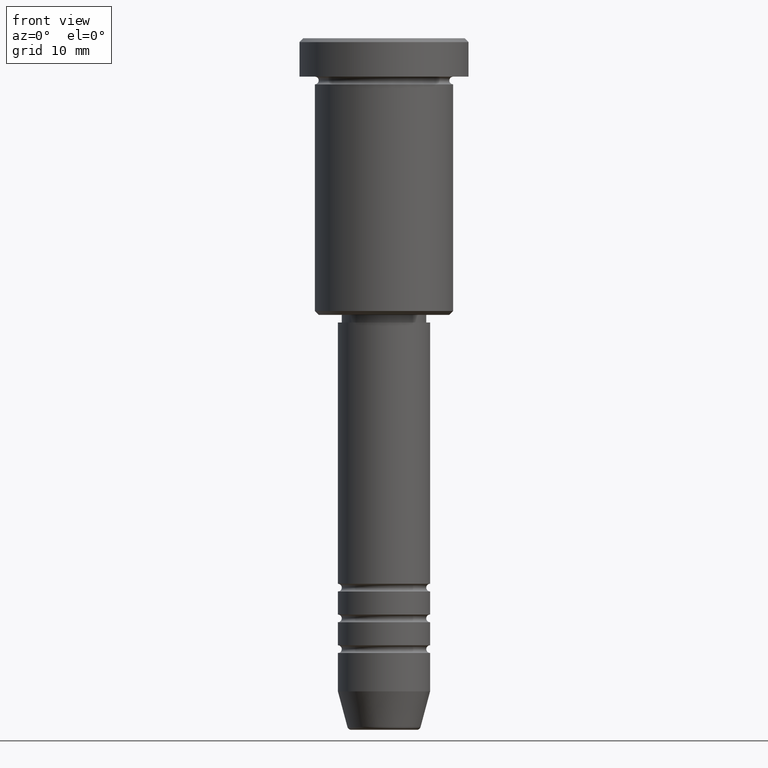
[diagram: clean part render]
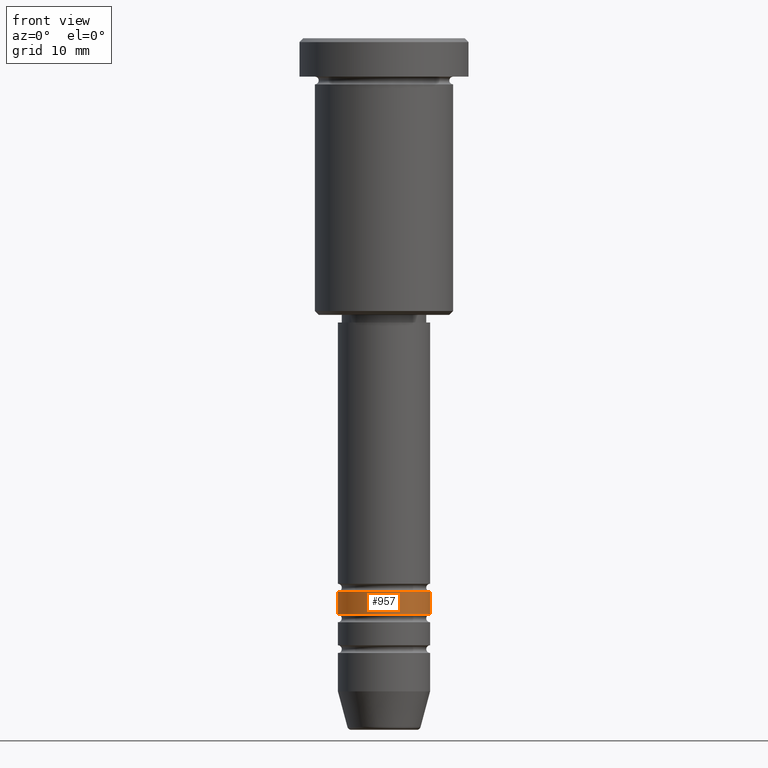
[diagram: same view with one face highlighted and labeled with its STEP entity id]
A machine part, front view. The second image highlights one B-rep face of the part: STEP entity #957.
In plain terms, the highlighted cylindrical surface (partial cylindrical patch) has radius 6 mm, axis along (-0, -0, 1).
Its self-contained STEP definition (entity closure, byte-faithful):
#29 = ORIENTED_EDGE ( 'NONE', *, *, #61, .T. ) ;
#43 = CARTESIAN_POINT ( 'NONE',  ( 6.000000000000000000, 0.000000000000000000, 0.000000000000000000 ) ) ;
#61 = EDGE_CURVE ( 'NONE', #406, #163, #1123, .T. ) ;
#81 = DIRECTION ( 'NONE',  ( -0.000000000000000000, -0.000000000000000000, 1.000000000000000000 ) ) ;
#100 = AXIS2_PLACEMENT_3D ( 'NONE', #885, #81, #634 ) ;
#115 = EDGE_LOOP ( 'NONE', ( #1179, #29, #606, #565 ) ) ;
#163 = VERTEX_POINT ( 'NONE', #828 ) ;
#169 = DIRECTION ( 'NONE',  ( -0.000000000000000000, -0.000000000000000000, 1.000000000000000000 ) ) ;
#211 = VERTEX_POINT ( 'NONE', #938 ) ;
#406 = VERTEX_POINT ( 'NONE', #683 ) ;
#457 = EDGE_CURVE ( 'NONE', #406, #681, #995, .T. ) ;
#491 = CARTESIAN_POINT ( 'NONE',  ( -5.999999999999999112, 7.347880794884118750E-16, -71.99999999999998579 ) ) ;
#532 = DIRECTION ( 'NONE',  ( 1.000000000000000000, 0.000000000000000000, 0.000000000000000000 ) ) ;
#565 = ORIENTED_EDGE ( 'NONE', *, *, #1016, .F. ) ;
#606 = ORIENTED_EDGE ( 'NONE', *, *, #705, .T. ) ;
#625 = CARTESIAN_POINT ( 'NONE',  ( 0.000000000000000000, 0.000000000000000000, -71.99999999999998579 ) ) ;
#634 = DIRECTION ( 'NONE',  ( 1.000000000000000000, 0.000000000000000000, 0.000000000000000000 ) ) ;
#677 = AXIS2_PLACEMENT_3D ( 'NONE', #1077, #698, #886 ) ;
#681 = VERTEX_POINT ( 'NONE', #491 ) ;
#683 = CARTESIAN_POINT ( 'NONE',  ( -6.000000000000001776, 7.347880794884121708E-16, -74.99999999999998579 ) ) ;
#694 = DIRECTION ( 'NONE',  ( -0.000000000000000000, -0.000000000000000000, 1.000000000000000000 ) ) ;
#697 = CIRCLE ( 'NONE', #870, 5.999999999999999112 ) ;
#698 = DIRECTION ( 'NONE',  ( -0.000000000000000000, -0.000000000000000000, 1.000000000000000000 ) ) ;
#704 = CYLINDRICAL_SURFACE ( 'NONE', #677, 6.000000000000000000 ) ;
#705 = EDGE_CURVE ( 'NONE', #163, #211, #762, .T. ) ;
#762 = LINE ( 'NONE', #43, #1066 ) ;
#828 = CARTESIAN_POINT ( 'NONE',  ( 6.000000000000001776, 0.000000000000000000, -74.99999999999998579 ) ) ;
#870 = AXIS2_PLACEMENT_3D ( 'NONE', #625, #169, #532 ) ;
#885 = CARTESIAN_POINT ( 'NONE',  ( 0.000000000000000000, 0.000000000000000000, -74.99999999999998579 ) ) ;
#886 = DIRECTION ( 'NONE',  ( 1.000000000000000000, 0.000000000000000000, 0.000000000000000000 ) ) ;
#899 = CARTESIAN_POINT ( 'NONE',  ( -6.000000000000000000, 7.347880794884119736E-16, 0.000000000000000000 ) ) ;
#938 = CARTESIAN_POINT ( 'NONE',  ( 5.999999999999999112, 0.000000000000000000, -71.99999999999998579 ) ) ;
#948 = DIRECTION ( 'NONE',  ( -0.000000000000000000, -0.000000000000000000, 1.000000000000000000 ) ) ;
#957 = ADVANCED_FACE ( 'NONE', ( #1152 ), #704, .T. ) ;
#995 = LINE ( 'NONE', #899, #1086 ) ;
#1016 = EDGE_CURVE ( 'NONE', #681, #211, #697, .T. ) ;
#1066 = VECTOR ( 'NONE', #948, 1000.000000000000000 ) ;
#1077 = CARTESIAN_POINT ( 'NONE',  ( 0.000000000000000000, 0.000000000000000000, 0.000000000000000000 ) ) ;
#1086 = VECTOR ( 'NONE', #694, 1000.000000000000000 ) ;
#1123 = CIRCLE ( 'NONE', #100, 6.000000000000001776 ) ;
#1152 = FACE_OUTER_BOUND ( 'NONE', #115, .T. ) ;
#1179 = ORIENTED_EDGE ( 'NONE', *, *, #457, .F. ) ;